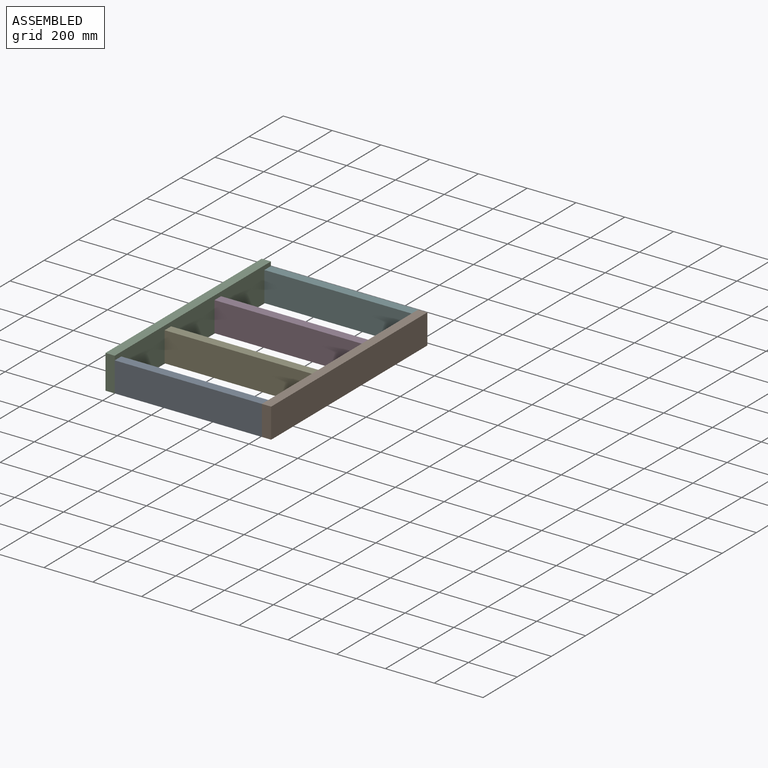
[diagram: assembled view]
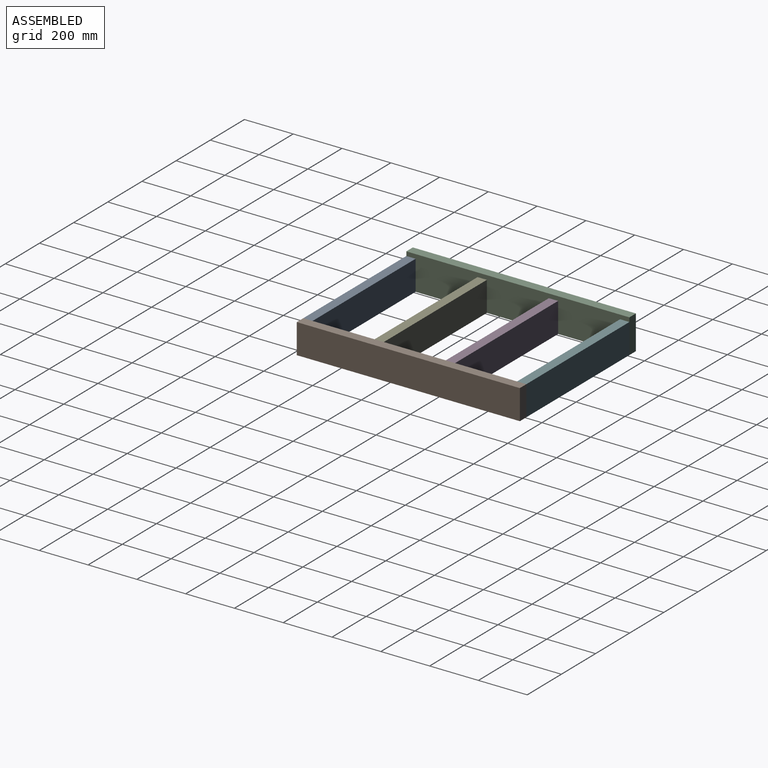
[diagram: assembled view, second angle]
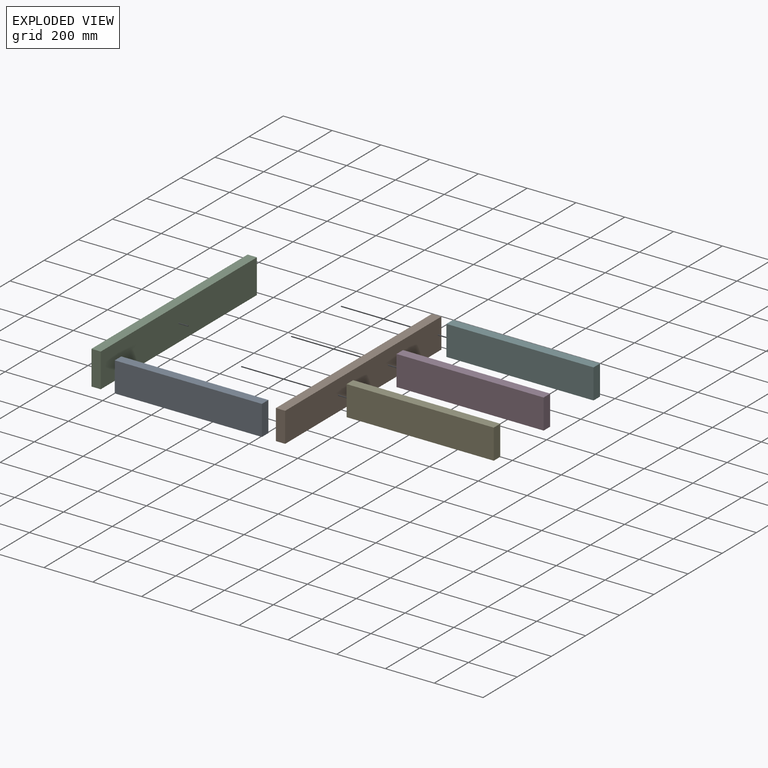
[diagram: exploded view]
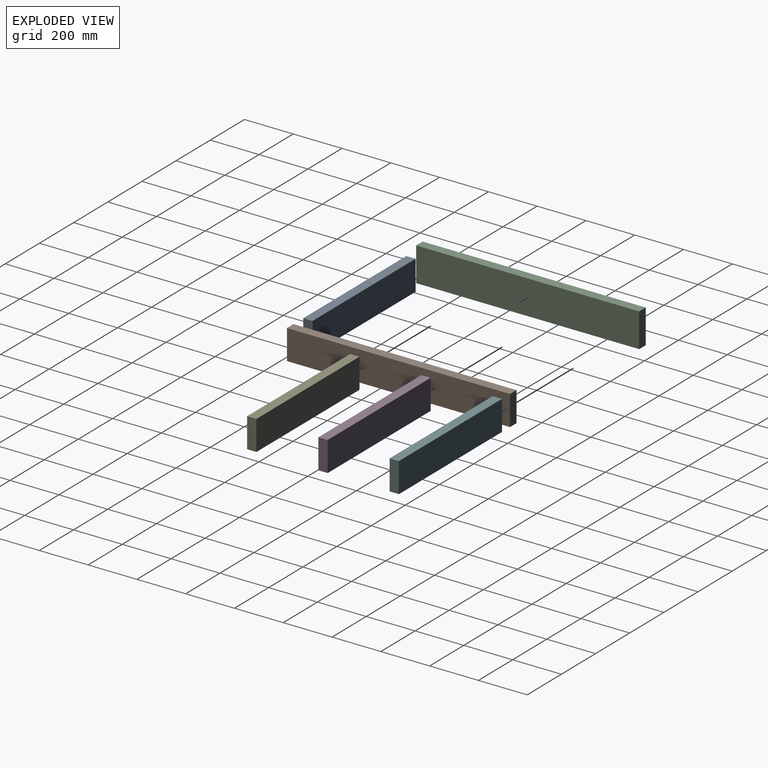
[diagram: exploded view, second angle]
ASSEMBLY  parts=6 mates=6
PART A: 6 faces, bbox 603.2x38.1x122.5 mm
  f0: plane 603.24x38.1mm, normal (0,0,1), area 22983.6mm2, adj f1,f3,f4,f5
  f1: plane 122.5x38.1mm, normal (-1,0,0), area 4667.2mm2, adj f0,f2,f4,f5
  f2: plane 603.24x38.1mm, normal (0,0,-1), area 22983.6mm2, adj f1,f3,f4,f5
  f3: plane 122.5x38.1mm, normal (1,0,0), area 4667.2mm2, adj f0,f2,f4,f5
  f4: plane 603.24x122.5mm, normal (0,1,0), area 73897mm2, adj f0,f1,f2,f3
  f5: plane 603.24x122.5mm, normal (0,-1,0), area 73897mm2, adj f0,f1,f2,f3
PART B: 6 faces, bbox 38.1x914.4x122.5 mm
  f0: plane 914.4x122.5mm, normal (-1,0,0), area 112013.5mm2, adj f1,f3,f4,f5
  f1: plane 914.4x38.1mm, normal (0,0,-1), area 34838.6mm2, adj f0,f2,f4,f5
  f2: plane 914.4x122.5mm, normal (1,0,0), area 112013.5mm2, adj f1,f3,f4,f5
  f3: plane 914.4x38.1mm, normal (0,0,1), area 34838.6mm2, adj f0,f2,f4,f5
  f4: plane 122.5x38.1mm, normal (0,1,0), area 4667.2mm2, adj f0,f1,f2,f3
  f5: plane 122.5x38.1mm, normal (0,-1,0), area 4667.2mm2, adj f0,f1,f2,f3
PART C: 6 faces, bbox 38.1x914.4x139.7 mm
  f0: plane 914.4x139.7mm, normal (-1,0,0), area 127741.7mm2, adj f1,f3,f4,f5
  f1: plane 914.4x38.1mm, normal (0,0,-1), area 34838.6mm2, adj f0,f2,f4,f5
  f2: plane 914.4x139.7mm, normal (1,0,0), area 127741.7mm2, adj f1,f3,f4,f5
  f3: plane 914.4x38.1mm, normal (0,0,1), area 34838.6mm2, adj f0,f2,f4,f5
  f4: plane 139.7x38.1mm, normal (0,1,0), area 5322.6mm2, adj f0,f1,f2,f3
  f5: plane 139.7x38.1mm, normal (0,-1,0), area 5322.6mm2, adj f0,f1,f2,f3
PART D: same geometry as A
PART E: same geometry as A
PART F: same geometry as A
PLACE A t=(793.45,579.41,-22.1)mm
PLACE B t=(793.45,579.41,-22.1)mm
PLACE C t=(793.45,579.41,-22.1)mm
PLACE D t=(793.45,1163.61,-22.1)mm
PLACE E t=(793.45,871.51,-22.1)mm
PLACE F t=(793.45,1455.71,-22.1)mm
MATE planar B.f0 <-> A.f3  axis (-1,0,0) through (-774.64,96.81,142.36)mm
MATE planar A.f1 <-> C.f2  axis (-1,0,0) through (-1377.88,-341.34,142.36)mm
MATE planar B.f1 <-> A.f2  axis (0,0,-1) through (-755.59,96.81,81.11)mm
MATE planar A.f2 <-> C.f1  axis (0,0,-1) through (-1076.26,-341.34,81.11)mm
MATE planar B.f5 <-> A.f5  axis (0,-1,0) through (-755.59,-360.39,142.36)mm
MATE planar A.f5 <-> C.f5  axis (0,-1,0) through (-1076.26,-360.39,142.36)mm
